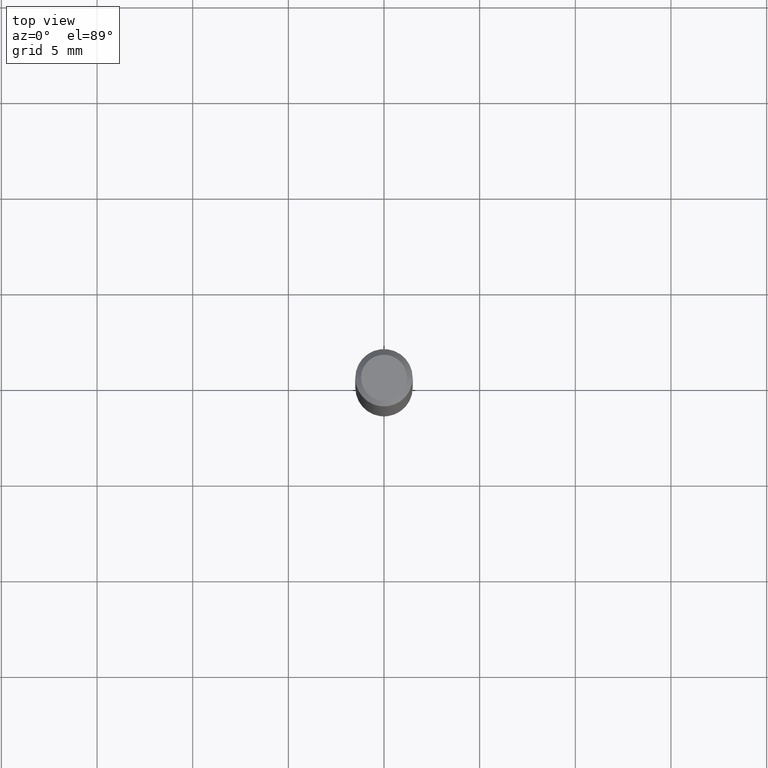
[diagram: clean part render]
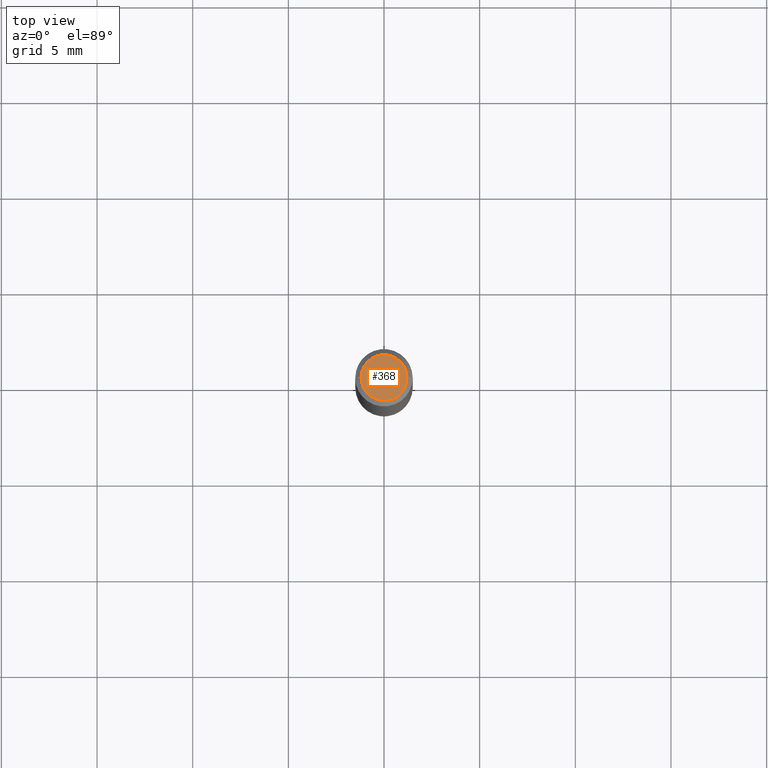
[diagram: same view with one face highlighted and labeled with its STEP entity id]
A machine part, top view. The second image highlights one B-rep face of the part: STEP entity #368.
In plain terms, the highlighted planar face has unit normal (0, -0, -1).
Its self-contained STEP definition (entity closure, byte-faithful):
#63 = DIRECTION ( 'NONE',  ( 1.000000000000000000, -6.982962677686266711E-15, 4.876185090822587894E-29 ) ) ;
#76 = ORIENTED_EDGE ( 'NONE', *, *, #238, .T. ) ;
#79 = AXIS2_PLACEMENT_3D ( 'NONE', #448, #148, #63 ) ;
#96 = EDGE_CURVE ( 'NONE', #325, #168, #295, .T. ) ;
#100 = DIRECTION ( 'NONE',  ( 2.438088387897960049E-29, -3.491481338843145188E-15, -1.000000000000000000 ) ) ;
#111 = AXIS2_PLACEMENT_3D ( 'NONE', #150, #100, #413 ) ;
#115 = AXIS2_PLACEMENT_3D ( 'NONE', #473, #292, #440 ) ;
#148 = DIRECTION ( 'NONE',  ( -2.445468806185136597E-29, 3.491481338843145583E-15, 1.000000000000000000 ) ) ;
#150 = CARTESIAN_POINT ( 'NONE',  ( 4.132873053354867254E-48, -5.900647395337818946E-34, -1.690012582823346072E-19 ) ) ;
#162 = CARTESIAN_POINT ( 'NONE',  ( -0.04724000000000000421, 3.504923541997677355E-16, -3.380025165670481712E-19 ) ) ;
#168 = VERTEX_POINT ( 'NONE', #450 ) ;
#238 = EDGE_CURVE ( 'NONE', #168, #325, #464, .T. ) ;
#266 = FACE_OUTER_BOUND ( 'NONE', #398, .T. ) ;
#292 = DIRECTION ( 'NONE',  ( -2.445468806185136597E-29, 3.491481338843145583E-15, 1.000000000000000000 ) ) ;
#295 = CIRCLE ( 'NONE', #115, 0.04724000000000000421 ) ;
#325 = VERTEX_POINT ( 'NONE', #162 ) ;
#368 = ADVANCED_FACE ( 'NONE', ( #266 ), #408, .F. ) ;
#398 = EDGE_LOOP ( 'NONE', ( #466, #76 ) ) ;
#408 = PLANE ( 'NONE',  #111 ) ;
#413 = DIRECTION ( 'NONE',  ( -1.000000000000000000, 6.982962677686265922E-15, -4.876176775795935793E-29 ) ) ;
#440 = DIRECTION ( 'NONE',  ( 1.000000000000000000, -6.982962677686266711E-15, 4.876185090822587894E-29 ) ) ;
#448 = CARTESIAN_POINT ( 'NONE',  ( 8.265746106709734507E-48, -1.180129479067563789E-33, -3.380025165646692144E-19 ) ) ;
#450 = CARTESIAN_POINT ( 'NONE',  ( 0.04724000000000000421, -3.852183633974369345E-16, -3.380025165621689721E-19 ) ) ;
#464 = CIRCLE ( 'NONE', #79, 0.04724000000000000421 ) ;
#466 = ORIENTED_EDGE ( 'NONE', *, *, #96, .T. ) ;
#473 = CARTESIAN_POINT ( 'NONE',  ( 8.265746106709734507E-48, -1.180129479067563789E-33, -3.380025165646692144E-19 ) ) ;